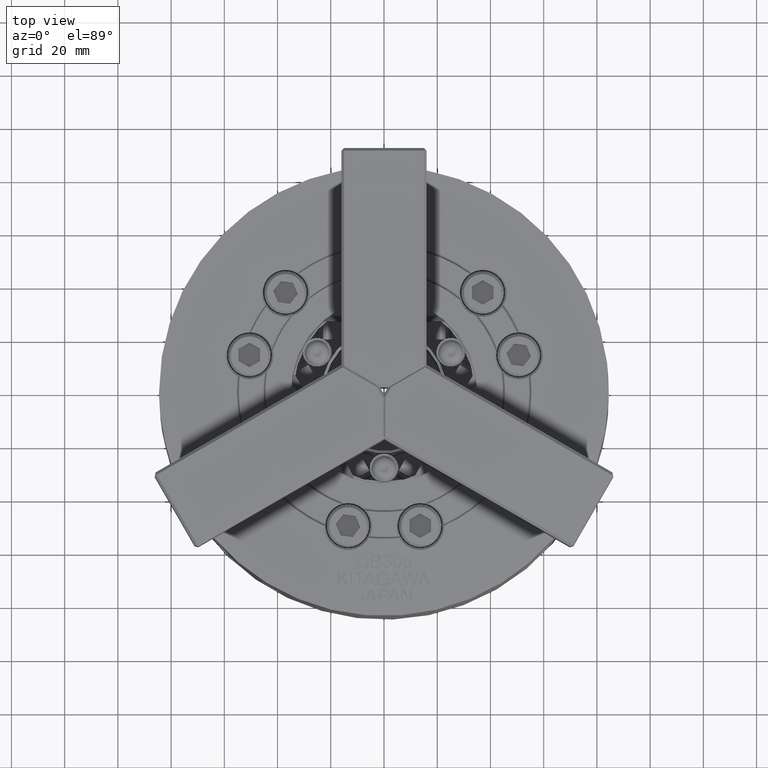
[diagram: clean part render]
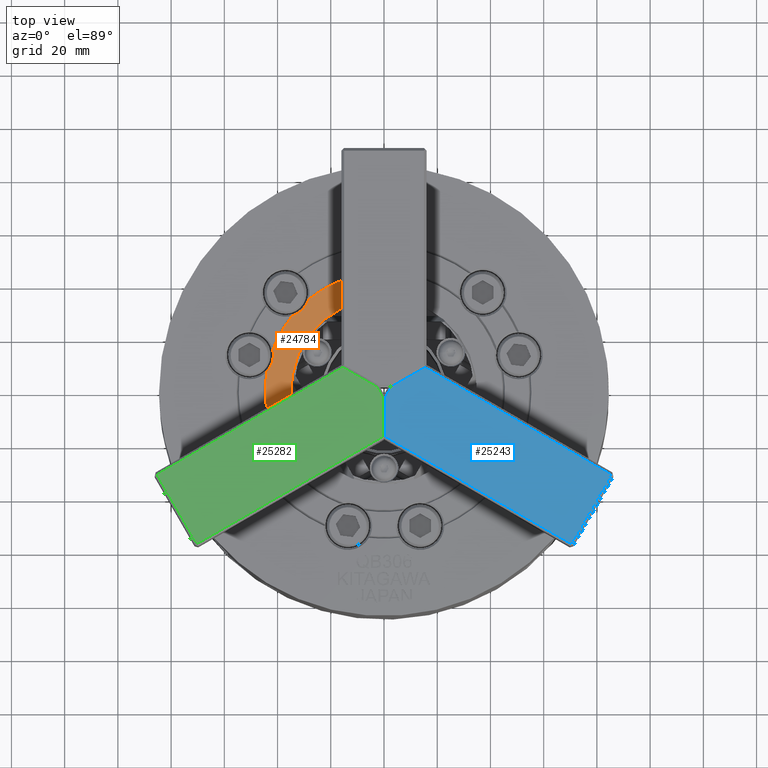
[diagram: same view with three faces highlighted in distinct colors, each labeled with its STEP entity id]
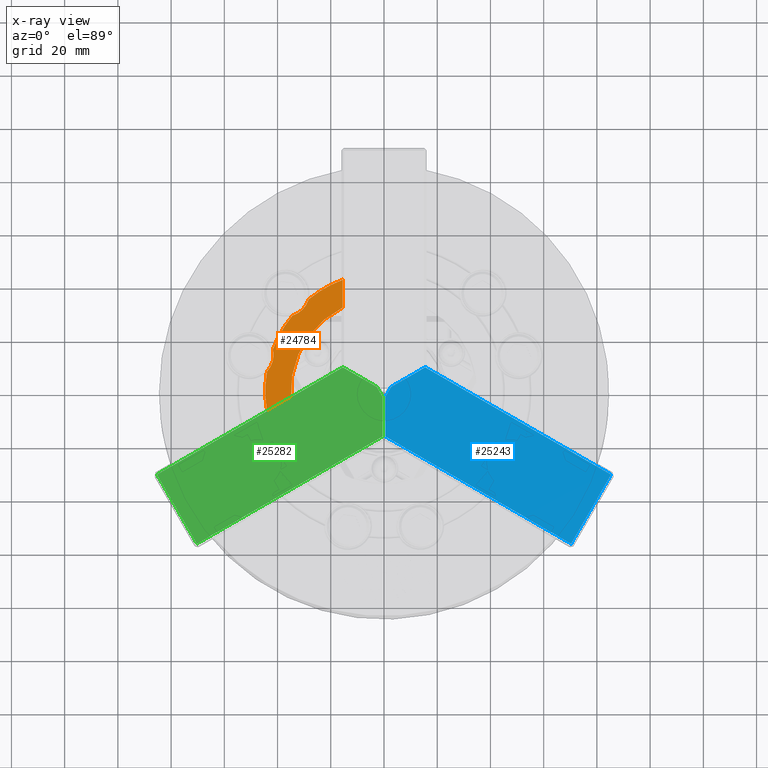
[diagram: x-ray of the same camera — body ghosted, the three highlighted faces saturated]
A machine part, top view with three faces highlighted in distinct colors.
The next image is the same camera in x-ray (body ghosted, the three faces saturated) — at least one of them is partly hidden behind the body in this view.
Their STEP definitions:

[orange] entity #24784 — the highlighted planar face has unit normal (0, 0, -1).
#2097=LINE('',#40521,#4131);
#2144=LINE('',#40667,#4178);
#4131=VECTOR('',#29864,1000.);
#4178=VECTOR('',#30007,1000.);
#7640=ORIENTED_EDGE('',*,*,#13655,.T.);
#7641=ORIENTED_EDGE('',*,*,#12908,.T.);
#7642=ORIENTED_EDGE('',*,*,#13735,.F.);
#7643=ORIENTED_EDGE('',*,*,#13996,.F.);
#7644=ORIENTED_EDGE('',*,*,#13747,.T.);
#7645=ORIENTED_EDGE('',*,*,#13981,.F.);
#7646=ORIENTED_EDGE('',*,*,#13779,.T.);
#7647=ORIENTED_EDGE('',*,*,#14007,.F.);
#12908=EDGE_CURVE('',#16486,#16485,#18776,.T.);
#13655=EDGE_CURVE('',#17007,#16486,#2097,.T.);
#13735=EDGE_CURVE('',#17057,#16485,#2144,.T.);
#13747=EDGE_CURVE('',#17059,#17061,#18901,.T.);
#13779=EDGE_CURVE('',#17091,#17093,#18917,.T.);
#13981=EDGE_CURVE('',#17091,#17061,#19017,.T.);
#13996=EDGE_CURVE('',#17059,#17057,#19032,.T.);
#14007=EDGE_CURVE('',#17007,#17093,#19041,.T.);
#16485=VERTEX_POINT('',#35702);
#16486=VERTEX_POINT('',#35704);
#17007=VERTEX_POINT('',#40522);
#17057=VERTEX_POINT('',#40666);
#17059=VERTEX_POINT('',#40686);
#17061=VERTEX_POINT('',#40693);
#17091=VERTEX_POINT('',#40806);
#17093=VERTEX_POINT('',#40813);
#18776=CIRCLE('',#26013,35.);
#18901=CIRCLE('',#26395,9.1);
#18917=CIRCLE('',#26419,9.1);
#19017=CIRCLE('',#26578,44.6);
#19032=CIRCLE('',#26604,44.6);
#19041=CIRCLE('',#26621,44.6);
#20161=EDGE_LOOP('',(#7640,#7641,#7642,#7643,#7644,#7645,#7646,#7647));
#22091=FACE_BOUND('',#20161,.T.);
#23758=PLANE('',#26638);
#24784=ADVANCED_FACE('',(#22091),#23758,.F.);
#26013=AXIS2_PLACEMENT_3D('',#35703,#28708,#28709);
#26395=AXIS2_PLACEMENT_3D('',#40694,#30036,#30037);
#26419=AXIS2_PLACEMENT_3D('',#40814,#30084,#30085);
#26578=AXIS2_PLACEMENT_3D('',#41522,#30408,#30409);
#26604=AXIS2_PLACEMENT_3D('',#41548,#30460,#30461);
#26621=AXIS2_PLACEMENT_3D('',#41568,#30496,#30497);
#26638=AXIS2_PLACEMENT_3D('',#41586,#30530,#30531);
#28708=DIRECTION('',(0.,0.,-1.));
#28709=DIRECTION('',(-1.,0.,0.));
#29864=DIRECTION('',(0.866025403784439,0.5,0.));
#30007=DIRECTION('',(0.,-1.,0.));
#30036=DIRECTION('',(0.,0.,-1.));
#30037=DIRECTION('',(-1.,0.,0.));
#30084=DIRECTION('',(0.,0.,-1.));
#30085=DIRECTION('',(-1.,0.,0.));
#30408=DIRECTION('',(0.,0.,-1.));
#30409=DIRECTION('',(-1.,0.,0.));
#30460=DIRECTION('',(0.,0.,-1.));
#30461=DIRECTION('',(-1.,0.,0.));
#30496=DIRECTION('',(0.,0.,-1.));
#30497=DIRECTION('',(-1.,0.,0.));
#30530=DIRECTION('',(0.,0.,-1.));
#30531=DIRECTION('',(-1.,0.,0.));
#35702=CARTESIAN_POINT('',(-15.5,31.3807265690264,0.));
#35703=CARTESIAN_POINT('',(0.,0.,2.66453525910038E-15));
#35704=CARTESIAN_POINT('',(-34.9265063979902,-2.26696952585442,0.));
#40521=CARTESIAN_POINT('',(-103.012794416288,-41.5766062413412,0.));
#40522=CARTESIAN_POINT('',(-43.9671575361734,-7.48659189413398,0.));
#40666=CARTESIAN_POINT('',(-15.5,41.8199713055856,0.));
#40667=CARTESIAN_POINT('',(-15.5,110.,0.));
#40686=CARTESIAN_POINT('',(-28.3224091787432,34.4528828737428,0.));
#40693=CARTESIAN_POINT('',(-34.4528828737428,28.3224091787433,0.));
#40694=CARTESIAN_POINT('',(-37.0453242663632,37.0453242663633,1.33226762955019E-15));
#40806=CARTESIAN_POINT('',(-41.7543672820406,15.6758672128994,0.));
#40813=CARTESIAN_POINT('',(-43.9982763916427,7.30148440829784,0.));
#40814=CARTESIAN_POINT('',(-50.6048540392843,13.5595297729211,1.33226762955019E-15));
#41522=CARTESIAN_POINT('',(0.,0.,0.));
#41548=CARTESIAN_POINT('',(0.,0.,0.));
#41568=CARTESIAN_POINT('',(0.,0.,0.));
#41586=CARTESIAN_POINT('',(35.,0.,1.33226762955019E-15));

[blue] entity #25243 — the highlighted planar face has unit normal (0, 0, -1).
#2854=LINE('',#45430,#4888);
#2855=LINE('',#45433,#4889);
#2856=LINE('',#45435,#4890);
#2857=LINE('',#45437,#4891);
#2858=LINE('',#45439,#4892);
#2859=LINE('',#45441,#4893);
#4888=VECTOR('',#32771,1000.);
#4889=VECTOR('',#32772,1000.);
#4890=VECTOR('',#32773,1000.);
#4891=VECTOR('',#32774,1000.);
#4892=VECTOR('',#32775,1000.);
#4893=VECTOR('',#32776,1000.);
#10324=ORIENTED_EDGE('',*,*,#15230,.T.);
#10325=ORIENTED_EDGE('',*,*,#15231,.T.);
#10326=ORIENTED_EDGE('',*,*,#15232,.T.);
#10327=ORIENTED_EDGE('',*,*,#15233,.T.);
#10328=ORIENTED_EDGE('',*,*,#15234,.T.);
#10329=ORIENTED_EDGE('',*,*,#15235,.T.);
#15230=EDGE_CURVE('',#18054,#18055,#2854,.T.);
#15231=EDGE_CURVE('',#18055,#18056,#2855,.T.);
#15232=EDGE_CURVE('',#18056,#18057,#2856,.T.);
#15233=EDGE_CURVE('',#18057,#18058,#2857,.T.);
#15234=EDGE_CURVE('',#18058,#18059,#2858,.T.);
#15235=EDGE_CURVE('',#18059,#18054,#2859,.T.);
#18054=VERTEX_POINT('',#45431);
#18055=VERTEX_POINT('',#45432);
#18056=VERTEX_POINT('',#45434);
#18057=VERTEX_POINT('',#45436);
#18058=VERTEX_POINT('',#45438);
#18059=VERTEX_POINT('',#45440);
#20753=EDGE_LOOP('',(#10324,#10325,#10326,#10327,#10328,#10329));
#22683=FACE_BOUND('',#20753,.T.);
#24027=PLANE('',#27407);
#25243=ADVANCED_FACE('',(#22683),#24027,.F.);
#27407=AXIS2_PLACEMENT_3D('',#45429,#32769,#32770);
#32769=DIRECTION('',(0.,0.,-1.));
#32770=DIRECTION('',(0.866025403784437,-0.500000000000003,0.));
#32771=DIRECTION('',(-0.500000000000003,-0.866025403784437,0.));
#32772=DIRECTION('',(-3.60822483003176E-15,-1.,0.));
#32773=DIRECTION('',(0.866025403784437,-0.500000000000003,0.));
#32774=DIRECTION('',(0.500000000000003,0.866025403784437,0.));
#32775=DIRECTION('',(-0.866025403784437,0.500000000000003,0.));
#32776=DIRECTION('',(-0.86602540378444,-0.499999999999997,0.));
#45429=CARTESIAN_POINT('',(-7.28346642355027,-14.2700973137974,31.));
#45430=CARTESIAN_POINT('',(-6.41744101976584,-14.7700973137974,31.));
#45431=CARTESIAN_POINT('',(2.69858438401865,1.01932184864577,31.));
#45432=CARTESIAN_POINT('',(0.466533576449754,-2.84670355513867,31.));
#45433=CARTESIAN_POINT('',(0.466533576449712,-18.1672116308274,31.));
#45434=CARTESIAN_POINT('',(0.466533576449726,-17.5898613616378,31.));
#45435=CARTESIAN_POINT('',(70.2927945132646,-57.9040719100133,31.));
#45436=CARTESIAN_POINT('',(70.2927945132646,-57.9040719100133,31.));
#45437=CARTESIAN_POINT('',(85.7927945132647,-31.0572843926957,31.));
#45438=CARTESIAN_POINT('',(85.2927945132647,-31.9233097964801,31.));
#45439=CARTESIAN_POINT('',(14.9665335764499,8.6795758864901,31.));
#45440=CARTESIAN_POINT('',(15.4665335764498,8.3909007518953,31.));
#45441=CARTESIAN_POINT('',(4.19858438401871,1.88534725243018,31.));

[green] entity #25282 — the highlighted planar face has unit normal (0, 0, -1).
#2932=LINE('',#46226,#4966);
#2933=LINE('',#46229,#4967);
#2934=LINE('',#46231,#4968);
#2935=LINE('',#46233,#4969);
#2936=LINE('',#46235,#4970);
#2937=LINE('',#46237,#4971);
#4966=VECTOR('',#32915,1000.);
#4967=VECTOR('',#32916,1000.);
#4968=VECTOR('',#32917,1000.);
#4969=VECTOR('',#32918,1000.);
#4970=VECTOR('',#32919,1000.);
#4971=VECTOR('',#32920,1000.);
#10551=ORIENTED_EDGE('',*,*,#15368,.T.);
#10552=ORIENTED_EDGE('',*,*,#15369,.T.);
#10553=ORIENTED_EDGE('',*,*,#15370,.T.);
#10554=ORIENTED_EDGE('',*,*,#15371,.T.);
#10555=ORIENTED_EDGE('',*,*,#15372,.T.);
#10556=ORIENTED_EDGE('',*,*,#15373,.T.);
#15368=EDGE_CURVE('',#18148,#18149,#2932,.T.);
#15369=EDGE_CURVE('',#18149,#18150,#2933,.T.);
#15370=EDGE_CURVE('',#18150,#18151,#2934,.T.);
#15371=EDGE_CURVE('',#18151,#18152,#2935,.T.);
#15372=EDGE_CURVE('',#18152,#18153,#2936,.T.);
#15373=EDGE_CURVE('',#18153,#18148,#2937,.T.);
#18148=VERTEX_POINT('',#46227);
#18149=VERTEX_POINT('',#46228);
#18150=VERTEX_POINT('',#46230);
#18151=VERTEX_POINT('',#46232);
#18152=VERTEX_POINT('',#46234);
#18153=VERTEX_POINT('',#46236);
#20792=EDGE_LOOP('',(#10551,#10552,#10553,#10554,#10555,#10556));
#22722=FACE_BOUND('',#20792,.T.);
#24050=PLANE('',#27440);
#25282=ADVANCED_FACE('',(#22722),#24050,.F.);
#27440=AXIS2_PLACEMENT_3D('',#46225,#32913,#32914);
#32913=DIRECTION('',(0.,0.,-1.));
#32914=DIRECTION('',(-0.866025403784439,-0.499999999999999,0.));
#32915=DIRECTION('',(-0.499999999999999,0.866025403784439,0.));
#32916=DIRECTION('',(-0.866025403784438,0.500000000000001,0.));
#32917=DIRECTION('',(-0.866025403784439,-0.499999999999999,0.));
#32918=DIRECTION('',(0.5,-0.866025403784439,0.));
#32919=DIRECTION('',(0.866025403784439,0.499999999999999,0.));
#32920=DIRECTION('',(8.88178419700125E-16,1.,0.));
#46225=CARTESIAN_POINT('',(-8.71653357644966,13.4427156073043,31.));
#46226=CARTESIAN_POINT('',(-9.58255898023411,12.9427156073044,31.));
#46227=CARTESIAN_POINT('',(-0.466533576449685,-2.84670355513889,31.));
#46228=CARTESIAN_POINT('',(-2.69858438401856,1.01932184864555,31.));
#46229=CARTESIAN_POINT('',(-15.9665335764497,8.67957588648995,31.));
#46230=CARTESIAN_POINT('',(-15.4665335764497,8.39090075189512,31.));
#46231=CARTESIAN_POINT('',(-85.2927945132648,-31.92330979648,31.));
#46232=CARTESIAN_POINT('',(-85.2927945132648,-31.92330979648,31.));
#46233=CARTESIAN_POINT('',(-69.7927945132648,-58.7700973137976,31.));
#46234=CARTESIAN_POINT('',(-70.2927945132648,-57.9040719100132,31.));
#46235=CARTESIAN_POINT('',(0.0334664235502741,-17.3011862270433,31.));
#46236=CARTESIAN_POINT('',(-0.466533576449699,-17.5898613616381,31.));
#46237=CARTESIAN_POINT('',(-0.46653357644974,-4.5787543627078,31.));